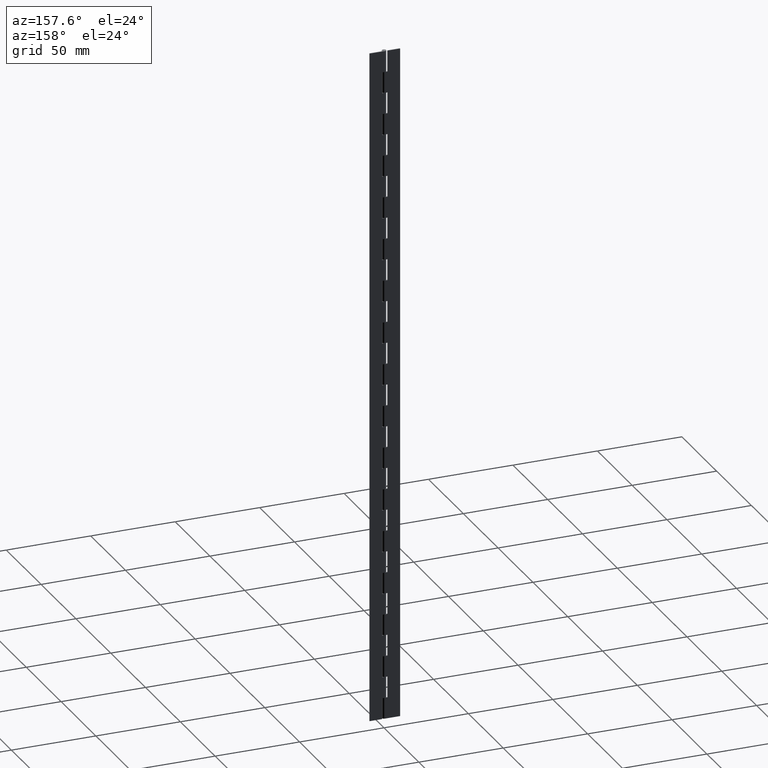
[diagram: clean part render]
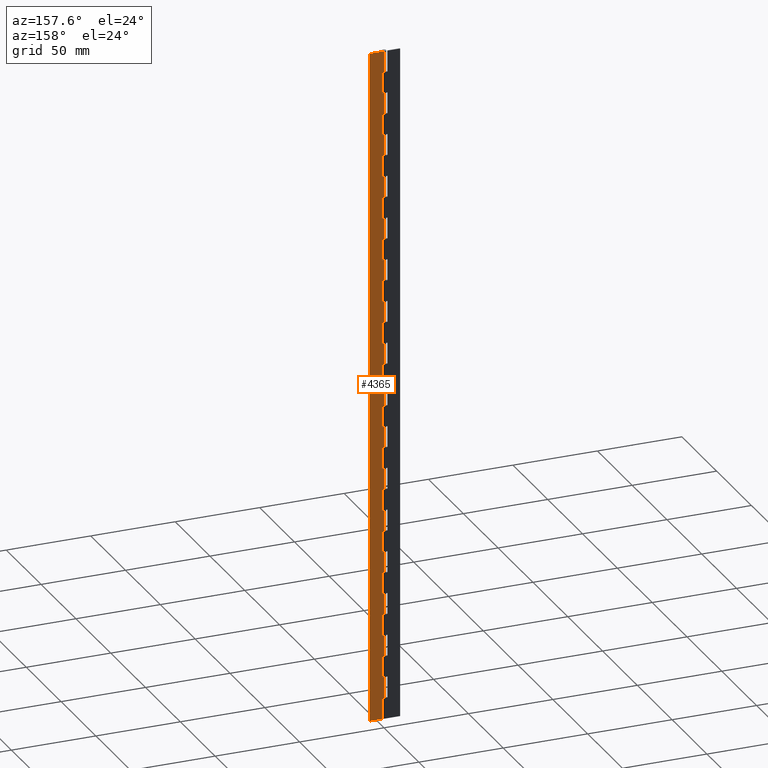
[diagram: same view with one face highlighted and labeled with its STEP entity id]
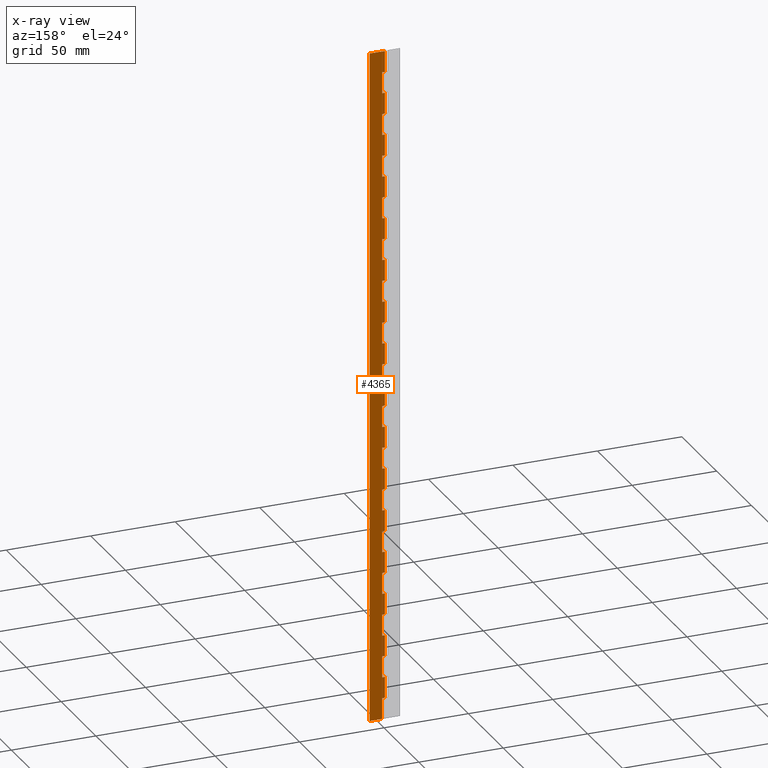
[diagram: x-ray of the same camera — body ghosted, the highlighted face saturated]
A machine part, auxiliary view. The second image highlights one B-rep face of the part: STEP entity #4365.
The next image is the same camera in x-ray: the body ghosted, the highlighted face saturated — about 0% of this face is hidden behind the body in this view.
In plain terms, the highlighted face is a freeform B-spline surface patch.
Its self-contained STEP definition (entity closure, byte-faithful):
#51=CARTESIAN_POINT('',(0.0,1.249999999999972,387.500000000000000));
#52=VERTEX_POINT('',#51);
#72=CARTESIAN_POINT('',(1.599998000000000,1.249999999999972,387.500000000000000));
#73=VERTEX_POINT('',#72);
#74=CARTESIAN_POINT('',(1.599998000000000,1.249999999999972,387.500000000000000));
#75=CARTESIAN_POINT('',(0.0,1.249999999999972,387.500000000000000));
#76=QUASI_UNIFORM_CURVE('',1,(#74,#75),.UNSPECIFIED.,.F.,.U.);
#77=EDGE_CURVE('',#73,#52,#76,.T.);
#136=CARTESIAN_POINT('',(1.599998000000000,1.249999999999972,375.0));
#137=VERTEX_POINT('',#136);
#143=CARTESIAN_POINT('',(0.0,1.249999999999972,375.0));
#144=VERTEX_POINT('',#143);
#145=CARTESIAN_POINT('',(0.0,1.249999999999972,375.0));
#146=CARTESIAN_POINT('',(1.599998000000000,1.249999999999972,375.0));
#147=QUASI_UNIFORM_CURVE('',1,(#145,#146),.UNSPECIFIED.,.F.,.U.);
#148=EDGE_CURVE('',#144,#137,#147,.T.);
#211=CARTESIAN_POINT('',(1.599998000000000,1.249999999999972,375.0));
#212=CARTESIAN_POINT('',(1.599998000000000,1.249999999999972,387.500000000000000));
#213=QUASI_UNIFORM_CURVE('',1,(#211,#212),.UNSPECIFIED.,.F.,.U.);
#214=EDGE_CURVE('',#137,#73,#213,.T.);
#227=CARTESIAN_POINT('',(0.0,1.249999999999972,362.500000000000000));
#228=VERTEX_POINT('',#227);
#248=CARTESIAN_POINT('',(1.599998000000000,1.249999999999972,362.500000000000000));
#249=VERTEX_POINT('',#248);
#250=CARTESIAN_POINT('',(1.599998000000000,1.249999999999972,362.500000000000000));
#251=CARTESIAN_POINT('',(0.0,1.249999999999972,362.500000000000000));
#252=QUASI_UNIFORM_CURVE('',1,(#250,#251),.UNSPECIFIED.,.F.,.U.);
#253=EDGE_CURVE('',#249,#228,#252,.T.);
#312=CARTESIAN_POINT('',(1.599998000000000,1.249999999999972,350.0));
#313=VERTEX_POINT('',#312);
#319=CARTESIAN_POINT('',(0.0,1.249999999999972,350.0));
#320=VERTEX_POINT('',#319);
#321=CARTESIAN_POINT('',(0.0,1.249999999999972,350.0));
#322=CARTESIAN_POINT('',(1.599998000000000,1.249999999999972,350.0));
#323=QUASI_UNIFORM_CURVE('',1,(#321,#322),.UNSPECIFIED.,.F.,.U.);
#324=EDGE_CURVE('',#320,#313,#323,.T.);
#387=CARTESIAN_POINT('',(1.599998000000000,1.249999999999972,350.0));
#388=CARTESIAN_POINT('',(1.599998000000000,1.249999999999972,362.500000000000000));
#389=QUASI_UNIFORM_CURVE('',1,(#387,#388),.UNSPECIFIED.,.F.,.U.);
#390=EDGE_CURVE('',#313,#249,#389,.T.);
#403=CARTESIAN_POINT('',(0.0,1.249999999999972,337.500000000000000));
#404=VERTEX_POINT('',#403);
#424=CARTESIAN_POINT('',(1.599998000000000,1.249999999999972,337.500000000000000));
#425=VERTEX_POINT('',#424);
#426=CARTESIAN_POINT('',(1.599998000000000,1.249999999999972,337.500000000000000));
#427=CARTESIAN_POINT('',(0.0,1.249999999999972,337.500000000000000));
#428=QUASI_UNIFORM_CURVE('',1,(#426,#427),.UNSPECIFIED.,.F.,.U.);
#429=EDGE_CURVE('',#425,#404,#428,.T.);
#488=CARTESIAN_POINT('',(1.599998000000000,1.249999999999972,325.0));
#489=VERTEX_POINT('',#488);
#495=CARTESIAN_POINT('',(0.0,1.249999999999972,325.0));
#496=VERTEX_POINT('',#495);
#497=CARTESIAN_POINT('',(0.0,1.249999999999972,325.0));
#498=CARTESIAN_POINT('',(1.599998000000000,1.249999999999972,325.0));
#499=QUASI_UNIFORM_CURVE('',1,(#497,#498),.UNSPECIFIED.,.F.,.U.);
#500=EDGE_CURVE('',#496,#489,#499,.T.);
#563=CARTESIAN_POINT('',(1.599998000000000,1.249999999999972,325.0));
#564=CARTESIAN_POINT('',(1.599998000000000,1.249999999999972,337.500000000000000));
#565=QUASI_UNIFORM_CURVE('',1,(#563,#564),.UNSPECIFIED.,.F.,.U.);
#566=EDGE_CURVE('',#489,#425,#565,.T.);
#579=CARTESIAN_POINT('',(0.0,1.249999999999972,312.500000000000000));
#580=VERTEX_POINT('',#579);
#600=CARTESIAN_POINT('',(1.599998000000000,1.249999999999972,312.500000000000000));
#601=VERTEX_POINT('',#600);
#602=CARTESIAN_POINT('',(1.599998000000000,1.249999999999972,312.500000000000000));
#603=CARTESIAN_POINT('',(0.0,1.249999999999972,312.500000000000000));
#604=QUASI_UNIFORM_CURVE('',1,(#602,#603),.UNSPECIFIED.,.F.,.U.);
#605=EDGE_CURVE('',#601,#580,#604,.T.);
#664=CARTESIAN_POINT('',(1.599998000000000,1.249999999999972,300.0));
#665=VERTEX_POINT('',#664);
#671=CARTESIAN_POINT('',(0.0,1.249999999999972,300.0));
#672=VERTEX_POINT('',#671);
#673=CARTESIAN_POINT('',(0.0,1.249999999999972,300.0));
#674=CARTESIAN_POINT('',(1.599998000000000,1.249999999999972,300.0));
#675=QUASI_UNIFORM_CURVE('',1,(#673,#674),.UNSPECIFIED.,.F.,.U.);
#676=EDGE_CURVE('',#672,#665,#675,.T.);
#739=CARTESIAN_POINT('',(1.599998000000000,1.249999999999972,300.0));
#740=CARTESIAN_POINT('',(1.599998000000000,1.249999999999972,312.500000000000000));
#741=QUASI_UNIFORM_CURVE('',1,(#739,#740),.UNSPECIFIED.,.F.,.U.);
#742=EDGE_CURVE('',#665,#601,#741,.T.);
#755=CARTESIAN_POINT('',(0.0,1.249999999999972,287.500000000000000));
#756=VERTEX_POINT('',#755);
#776=CARTESIAN_POINT('',(1.599998000000000,1.249999999999972,287.500000000000000));
#777=VERTEX_POINT('',#776);
#778=CARTESIAN_POINT('',(1.599998000000000,1.249999999999972,287.500000000000000));
#779=CARTESIAN_POINT('',(0.0,1.249999999999972,287.500000000000000));
#780=QUASI_UNIFORM_CURVE('',1,(#778,#779),.UNSPECIFIED.,.F.,.U.);
#781=EDGE_CURVE('',#777,#756,#780,.T.);
#840=CARTESIAN_POINT('',(1.599998000000000,1.249999999999972,275.0));
#841=VERTEX_POINT('',#840);
#847=CARTESIAN_POINT('',(0.0,1.249999999999972,275.0));
#848=VERTEX_POINT('',#847);
#849=CARTESIAN_POINT('',(0.0,1.249999999999972,275.0));
#850=CARTESIAN_POINT('',(1.599998000000000,1.249999999999972,275.0));
#851=QUASI_UNIFORM_CURVE('',1,(#849,#850),.UNSPECIFIED.,.F.,.U.);
#852=EDGE_CURVE('',#848,#841,#851,.T.);
#915=CARTESIAN_POINT('',(1.599998000000000,1.249999999999972,275.0));
#916=CARTESIAN_POINT('',(1.599998000000000,1.249999999999972,287.500000000000000));
#917=QUASI_UNIFORM_CURVE('',1,(#915,#916),.UNSPECIFIED.,.F.,.U.);
#918=EDGE_CURVE('',#841,#777,#917,.T.);
#931=CARTESIAN_POINT('',(0.0,1.249999999999972,262.500000000000000));
#932=VERTEX_POINT('',#931);
#952=CARTESIAN_POINT('',(1.599998000000000,1.249999999999972,262.500000000000000));
#953=VERTEX_POINT('',#952);
#954=CARTESIAN_POINT('',(1.599998000000000,1.249999999999972,262.500000000000000));
#955=CARTESIAN_POINT('',(0.0,1.249999999999972,262.500000000000000));
#956=QUASI_UNIFORM_CURVE('',1,(#954,#955),.UNSPECIFIED.,.F.,.U.);
#957=EDGE_CURVE('',#953,#932,#956,.T.);
#1016=CARTESIAN_POINT('',(1.599998000000000,1.249999999999972,250.0));
#1017=VERTEX_POINT('',#1016);
#1023=CARTESIAN_POINT('',(0.0,1.249999999999972,250.0));
#1024=VERTEX_POINT('',#1023);
#1025=CARTESIAN_POINT('',(0.0,1.249999999999972,250.0));
#1026=CARTESIAN_POINT('',(1.599998000000000,1.249999999999972,250.0));
#1027=QUASI_UNIFORM_CURVE('',1,(#1025,#1026),.UNSPECIFIED.,.F.,.U.);
#1028=EDGE_CURVE('',#1024,#1017,#1027,.T.);
#1091=CARTESIAN_POINT('',(1.599998000000000,1.249999999999972,250.0));
#1092=CARTESIAN_POINT('',(1.599998000000000,1.249999999999972,262.500000000000000));
#1093=QUASI_UNIFORM_CURVE('',1,(#1091,#1092),.UNSPECIFIED.,.F.,.U.);
#1094=EDGE_CURVE('',#1017,#953,#1093,.T.);
#1107=CARTESIAN_POINT('',(0.0,1.249999999999972,237.500000000000000));
#1108=VERTEX_POINT('',#1107);
#1128=CARTESIAN_POINT('',(1.599998000000000,1.249999999999972,237.500000000000000));
#1129=VERTEX_POINT('',#1128);
#1130=CARTESIAN_POINT('',(1.599998000000000,1.249999999999972,237.500000000000000));
#1131=CARTESIAN_POINT('',(0.0,1.249999999999972,237.500000000000000));
#1132=QUASI_UNIFORM_CURVE('',1,(#1130,#1131),.UNSPECIFIED.,.F.,.U.);
#1133=EDGE_CURVE('',#1129,#1108,#1132,.T.);
#1192=CARTESIAN_POINT('',(1.599998000000000,1.249999999999972,225.0));
#1193=VERTEX_POINT('',#1192);
#1199=CARTESIAN_POINT('',(0.0,1.249999999999972,225.0));
#1200=VERTEX_POINT('',#1199);
#1201=CARTESIAN_POINT('',(0.0,1.249999999999972,225.0));
#1202=CARTESIAN_POINT('',(1.599998000000000,1.249999999999972,225.0));
#1203=QUASI_UNIFORM_CURVE('',1,(#1201,#1202),.UNSPECIFIED.,.F.,.U.);
#1204=EDGE_CURVE('',#1200,#1193,#1203,.T.);
#1267=CARTESIAN_POINT('',(1.599998000000000,1.249999999999972,225.0));
#1268=CARTESIAN_POINT('',(1.599998000000000,1.249999999999972,237.500000000000000));
#1269=QUASI_UNIFORM_CURVE('',1,(#1267,#1268),.UNSPECIFIED.,.F.,.U.);
#1270=EDGE_CURVE('',#1193,#1129,#1269,.T.);
#1283=CARTESIAN_POINT('',(0.0,1.249999999999972,212.500000000000000));
#1284=VERTEX_POINT('',#1283);
#1304=CARTESIAN_POINT('',(1.599998000000000,1.249999999999972,212.500000000000000));
#1305=VERTEX_POINT('',#1304);
#1306=CARTESIAN_POINT('',(1.599998000000000,1.249999999999972,212.500000000000000));
#1307=CARTESIAN_POINT('',(0.0,1.249999999999972,212.500000000000000));
#1308=QUASI_UNIFORM_CURVE('',1,(#1306,#1307),.UNSPECIFIED.,.F.,.U.);
#1309=EDGE_CURVE('',#1305,#1284,#1308,.T.);
#1368=CARTESIAN_POINT('',(1.599998000000000,1.249999999999972,200.0));
#1369=VERTEX_POINT('',#1368);
#1375=CARTESIAN_POINT('',(0.0,1.249999999999972,200.0));
#1376=VERTEX_POINT('',#1375);
#1377=CARTESIAN_POINT('',(0.0,1.249999999999972,200.0));
#1378=CARTESIAN_POINT('',(1.599998000000000,1.249999999999972,200.0));
#1379=QUASI_UNIFORM_CURVE('',1,(#1377,#1378),.UNSPECIFIED.,.F.,.U.);
#1380=EDGE_CURVE('',#1376,#1369,#1379,.T.);
#1443=CARTESIAN_POINT('',(1.599998000000000,1.249999999999972,200.0));
#1444=CARTESIAN_POINT('',(1.599998000000000,1.249999999999972,212.500000000000000));
#1445=QUASI_UNIFORM_CURVE('',1,(#1443,#1444),.UNSPECIFIED.,.F.,.U.);
#1446=EDGE_CURVE('',#1369,#1305,#1445,.T.);
#1459=CARTESIAN_POINT('',(0.0,1.249999999999972,187.500000000000000));
#1460=VERTEX_POINT('',#1459);
#1480=CARTESIAN_POINT('',(1.599998000000000,1.249999999999972,187.500000000000000));
#1481=VERTEX_POINT('',#1480);
#1482=CARTESIAN_POINT('',(1.599998000000000,1.249999999999972,187.500000000000000));
#1483=CARTESIAN_POINT('',(0.0,1.249999999999972,187.500000000000000));
#1484=QUASI_UNIFORM_CURVE('',1,(#1482,#1483),.UNSPECIFIED.,.F.,.U.);
#1485=EDGE_CURVE('',#1481,#1460,#1484,.T.);
#1544=CARTESIAN_POINT('',(1.599998000000000,1.249999999999972,175.0));
#1545=VERTEX_POINT('',#1544);
#1551=CARTESIAN_POINT('',(0.0,1.249999999999972,175.0));
#1552=VERTEX_POINT('',#1551);
#1553=CARTESIAN_POINT('',(0.0,1.249999999999972,175.0));
#1554=CARTESIAN_POINT('',(1.599998000000000,1.249999999999972,175.0));
#1555=QUASI_UNIFORM_CURVE('',1,(#1553,#1554),.UNSPECIFIED.,.F.,.U.);
#1556=EDGE_CURVE('',#1552,#1545,#1555,.T.);
#1619=CARTESIAN_POINT('',(1.599998000000000,1.249999999999972,175.0));
#1620=CARTESIAN_POINT('',(1.599998000000000,1.249999999999972,187.500000000000000));
#1621=QUASI_UNIFORM_CURVE('',1,(#1619,#1620),.UNSPECIFIED.,.F.,.U.);
#1622=EDGE_CURVE('',#1545,#1481,#1621,.T.);
#1635=CARTESIAN_POINT('',(0.0,1.249999999999972,162.500000000000000));
#1636=VERTEX_POINT('',#1635);
#1656=CARTESIAN_POINT('',(1.599998000000000,1.249999999999972,162.500000000000000));
#1657=VERTEX_POINT('',#1656);
#1658=CARTESIAN_POINT('',(1.599998000000000,1.249999999999972,162.500000000000000));
#1659=CARTESIAN_POINT('',(0.0,1.249999999999972,162.500000000000000));
#1660=QUASI_UNIFORM_CURVE('',1,(#1658,#1659),.UNSPECIFIED.,.F.,.U.);
#1661=EDGE_CURVE('',#1657,#1636,#1660,.T.);
#1720=CARTESIAN_POINT('',(1.599998000000000,1.249999999999972,150.0));
#1721=VERTEX_POINT('',#1720);
#1727=CARTESIAN_POINT('',(0.0,1.249999999999972,150.0));
#1728=VERTEX_POINT('',#1727);
#1729=CARTESIAN_POINT('',(0.0,1.249999999999972,150.0));
#1730=CARTESIAN_POINT('',(1.599998000000000,1.249999999999972,150.0));
#1731=QUASI_UNIFORM_CURVE('',1,(#1729,#1730),.UNSPECIFIED.,.F.,.U.);
#1732=EDGE_CURVE('',#1728,#1721,#1731,.T.);
#1795=CARTESIAN_POINT('',(1.599998000000000,1.249999999999972,150.0));
#1796=CARTESIAN_POINT('',(1.599998000000000,1.249999999999972,162.500000000000000));
#1797=QUASI_UNIFORM_CURVE('',1,(#1795,#1796),.UNSPECIFIED.,.F.,.U.);
#1798=EDGE_CURVE('',#1721,#1657,#1797,.T.);
#1811=CARTESIAN_POINT('',(0.0,1.249999999999972,137.500000000000000));
#1812=VERTEX_POINT('',#1811);
#1832=CARTESIAN_POINT('',(1.599998000000000,1.249999999999972,137.500000000000000));
#1833=VERTEX_POINT('',#1832);
#1834=CARTESIAN_POINT('',(1.599998000000000,1.249999999999972,137.500000000000000));
#1835=CARTESIAN_POINT('',(0.0,1.249999999999972,137.500000000000000));
#1836=QUASI_UNIFORM_CURVE('',1,(#1834,#1835),.UNSPECIFIED.,.F.,.U.);
#1837=EDGE_CURVE('',#1833,#1812,#1836,.T.);
#1896=CARTESIAN_POINT('',(1.599998000000000,1.249999999999972,125.0));
#1897=VERTEX_POINT('',#1896);
#1903=CARTESIAN_POINT('',(0.0,1.249999999999972,125.0));
#1904=VERTEX_POINT('',#1903);
#1905=CARTESIAN_POINT('',(0.0,1.249999999999972,125.0));
#1906=CARTESIAN_POINT('',(1.599998000000000,1.249999999999972,125.0));
#1907=QUASI_UNIFORM_CURVE('',1,(#1905,#1906),.UNSPECIFIED.,.F.,.U.);
#1908=EDGE_CURVE('',#1904,#1897,#1907,.T.);
#1971=CARTESIAN_POINT('',(1.599998000000000,1.249999999999972,125.0));
#1972=CARTESIAN_POINT('',(1.599998000000000,1.249999999999972,137.500000000000000));
#1973=QUASI_UNIFORM_CURVE('',1,(#1971,#1972),.UNSPECIFIED.,.F.,.U.);
#1974=EDGE_CURVE('',#1897,#1833,#1973,.T.);
#1987=CARTESIAN_POINT('',(0.0,1.249999999999972,112.500000000000000));
#1988=VERTEX_POINT('',#1987);
#2008=CARTESIAN_POINT('',(1.599998000000000,1.249999999999972,112.500000000000000));
#2009=VERTEX_POINT('',#2008);
#2010=CARTESIAN_POINT('',(1.599998000000000,1.249999999999972,112.500000000000000));
#2011=CARTESIAN_POINT('',(0.0,1.249999999999972,112.500000000000000));
#2012=QUASI_UNIFORM_CURVE('',1,(#2010,#2011),.UNSPECIFIED.,.F.,.U.);
#2013=EDGE_CURVE('',#2009,#1988,#2012,.T.);
#2072=CARTESIAN_POINT('',(1.599998000000000,1.249999999999972,100.0));
#2073=VERTEX_POINT('',#2072);
#2079=CARTESIAN_POINT('',(0.0,1.249999999999972,100.0));
#2080=VERTEX_POINT('',#2079);
#2081=CARTESIAN_POINT('',(0.0,1.249999999999972,100.0));
#2082=CARTESIAN_POINT('',(1.599998000000000,1.249999999999972,100.0));
#2083=QUASI_UNIFORM_CURVE('',1,(#2081,#2082),.UNSPECIFIED.,.F.,.U.);
#2084=EDGE_CURVE('',#2080,#2073,#2083,.T.);
#2147=CARTESIAN_POINT('',(1.599998000000000,1.249999999999972,100.0));
#2148=CARTESIAN_POINT('',(1.599998000000000,1.249999999999972,112.500000000000000));
#2149=QUASI_UNIFORM_CURVE('',1,(#2147,#2148),.UNSPECIFIED.,.F.,.U.);
#2150=EDGE_CURVE('',#2073,#2009,#2149,.T.);
#2163=CARTESIAN_POINT('',(0.0,1.249999999999972,87.500000000000000));
#2164=VERTEX_POINT('',#2163);
#2184=CARTESIAN_POINT('',(1.599998000000000,1.249999999999972,87.500000000000000));
#2185=VERTEX_POINT('',#2184);
#2186=CARTESIAN_POINT('',(1.599998000000000,1.249999999999972,87.500000000000000));
#2187=CARTESIAN_POINT('',(0.0,1.249999999999972,87.500000000000000));
#2188=QUASI_UNIFORM_CURVE('',1,(#2186,#2187),.UNSPECIFIED.,.F.,.U.);
#2189=EDGE_CURVE('',#2185,#2164,#2188,.T.);
#2248=CARTESIAN_POINT('',(1.599998000000000,1.249999999999972,75.0));
#2249=VERTEX_POINT('',#2248);
#2255=CARTESIAN_POINT('',(0.0,1.249999999999972,75.0));
#2256=VERTEX_POINT('',#2255);
#2257=CARTESIAN_POINT('',(0.0,1.249999999999972,75.0));
#2258=CARTESIAN_POINT('',(1.599998000000000,1.249999999999972,75.0));
#2259=QUASI_UNIFORM_CURVE('',1,(#2257,#2258),.UNSPECIFIED.,.F.,.U.);
#2260=EDGE_CURVE('',#2256,#2249,#2259,.T.);
#2323=CARTESIAN_POINT('',(1.599998000000000,1.249999999999972,75.0));
#2324=CARTESIAN_POINT('',(1.599998000000000,1.249999999999972,87.500000000000000));
#2325=QUASI_UNIFORM_CURVE('',1,(#2323,#2324),.UNSPECIFIED.,.F.,.U.);
#2326=EDGE_CURVE('',#2249,#2185,#2325,.T.);
#2339=CARTESIAN_POINT('',(0.0,1.249999999999972,62.500000000000000));
#2340=VERTEX_POINT('',#2339);
#2360=CARTESIAN_POINT('',(1.599998000000000,1.249999999999972,62.500000000000000));
#2361=VERTEX_POINT('',#2360);
#2362=CARTESIAN_POINT('',(1.599998000000000,1.249999999999972,62.500000000000000));
#2363=CARTESIAN_POINT('',(0.0,1.249999999999972,62.500000000000000));
#2364=QUASI_UNIFORM_CURVE('',1,(#2362,#2363),.UNSPECIFIED.,.F.,.U.);
#2365=EDGE_CURVE('',#2361,#2340,#2364,.T.);
#2424=CARTESIAN_POINT('',(1.599998000000000,1.249999999999972,50.0));
#2425=VERTEX_POINT('',#2424);
#2431=CARTESIAN_POINT('',(0.0,1.249999999999972,50.0));
#2432=VERTEX_POINT('',#2431);
#2433=CARTESIAN_POINT('',(0.0,1.249999999999972,50.0));
#2434=CARTESIAN_POINT('',(1.599998000000000,1.249999999999972,50.0));
#2435=QUASI_UNIFORM_CURVE('',1,(#2433,#2434),.UNSPECIFIED.,.F.,.U.);
#2436=EDGE_CURVE('',#2432,#2425,#2435,.T.);
#2499=CARTESIAN_POINT('',(1.599998000000000,1.249999999999972,50.0));
#2500=CARTESIAN_POINT('',(1.599998000000000,1.249999999999972,62.500000000000000));
#2501=QUASI_UNIFORM_CURVE('',1,(#2499,#2500),.UNSPECIFIED.,.F.,.U.);
#2502=EDGE_CURVE('',#2425,#2361,#2501,.T.);
#2515=CARTESIAN_POINT('',(0.0,1.249999999999972,37.500000000000000));
#2516=VERTEX_POINT('',#2515);
#2536=CARTESIAN_POINT('',(1.599998000000000,1.249999999999972,37.500000000000000));
#2537=VERTEX_POINT('',#2536);
#2538=CARTESIAN_POINT('',(1.599998000000000,1.249999999999972,37.500000000000000));
#2539=CARTESIAN_POINT('',(0.0,1.249999999999972,37.500000000000000));
#2540=QUASI_UNIFORM_CURVE('',1,(#2538,#2539),.UNSPECIFIED.,.F.,.U.);
#2541=EDGE_CURVE('',#2537,#2516,#2540,.T.);
#2600=CARTESIAN_POINT('',(1.599998000000000,1.249999999999972,25.0));
#2601=VERTEX_POINT('',#2600);
#2607=CARTESIAN_POINT('',(0.0,1.249999999999972,25.0));
#2608=VERTEX_POINT('',#2607);
#2609=CARTESIAN_POINT('',(0.0,1.249999999999972,25.0));
#2610=CARTESIAN_POINT('',(1.599998000000000,1.249999999999972,25.0));
#2611=QUASI_UNIFORM_CURVE('',1,(#2609,#2610),.UNSPECIFIED.,.F.,.U.);
#2612=EDGE_CURVE('',#2608,#2601,#2611,.T.);
#2675=CARTESIAN_POINT('',(1.599998000000000,1.249999999999972,25.0));
#2676=CARTESIAN_POINT('',(1.599998000000000,1.249999999999972,37.500000000000000));
#2677=QUASI_UNIFORM_CURVE('',1,(#2675,#2676),.UNSPECIFIED.,.F.,.U.);
#2678=EDGE_CURVE('',#2601,#2537,#2677,.T.);
#2698=CARTESIAN_POINT('',(1.599998000000000,1.249999999999972,12.500000000000000));
#2699=VERTEX_POINT('',#2698);
#2705=CARTESIAN_POINT('',(1.599998000000000,1.250000000000000,0.0));
#2706=VERTEX_POINT('',#2705);
#2707=CARTESIAN_POINT('',(1.599998000000000,1.250000000000000,0.0));
#2708=CARTESIAN_POINT('',(1.599998000000000,1.249999999999972,12.500000000000000));
#2709=QUASI_UNIFORM_CURVE('',1,(#2707,#2708),.UNSPECIFIED.,.F.,.U.);
#2710=EDGE_CURVE('',#2706,#2699,#2709,.T.);
#2727=CARTESIAN_POINT('',(0.0,1.249999999999972,12.500000000000000));
#2728=VERTEX_POINT('',#2727);
#2748=CARTESIAN_POINT('',(1.599998000000000,1.249999999999972,12.500000000000000));
#2749=CARTESIAN_POINT('',(0.0,1.249999999999972,12.500000000000000));
#2750=QUASI_UNIFORM_CURVE('',1,(#2748,#2749),.UNSPECIFIED.,.F.,.U.);
#2751=EDGE_CURVE('',#2699,#2728,#2750,.T.);
#2804=CARTESIAN_POINT('',(9.0,1.250000000000000,400.0));
#2805=VERTEX_POINT('',#2804);
#2811=CARTESIAN_POINT('',(0.0,1.250000000000000,400.0));
#2812=VERTEX_POINT('',#2811);
#2813=CARTESIAN_POINT('',(9.0,1.250000000000000,400.0));
#2814=CARTESIAN_POINT('',(0.0,1.250000000000000,400.0));
#2815=QUASI_UNIFORM_CURVE('',1,(#2813,#2814),.UNSPECIFIED.,.F.,.U.);
#2816=EDGE_CURVE('',#2805,#2812,#2815,.T.);
#2875=CARTESIAN_POINT('',(9.0,1.250000000000000,0.0));
#2876=VERTEX_POINT('',#2875);
#2882=CARTESIAN_POINT('',(9.0,1.250000000000000,400.0));
#2883=CARTESIAN_POINT('',(9.0,1.250000000000000,0.0));
#2884=QUASI_UNIFORM_CURVE('',1,(#2882,#2883),.UNSPECIFIED.,.F.,.U.);
#2885=EDGE_CURVE('',#2805,#2876,#2884,.T.);
#2902=CARTESIAN_POINT('',(9.0,1.250000000000000,0.0));
#2903=CARTESIAN_POINT('',(1.599998000000000,1.250000000000000,0.0));
#2904=QUASI_UNIFORM_CURVE('',1,(#2902,#2903),.UNSPECIFIED.,.F.,.U.);
#2905=EDGE_CURVE('',#2876,#2706,#2904,.T.);
#2992=CARTESIAN_POINT('',(0.0,1.249999999999972,25.0));
#2993=CARTESIAN_POINT('',(0.0,1.249999999999972,12.500000000000000));
#2994=QUASI_UNIFORM_CURVE('',1,(#2992,#2993),.UNSPECIFIED.,.F.,.U.);
#2995=EDGE_CURVE('',#2608,#2728,#2994,.T.);
#3078=CARTESIAN_POINT('',(0.0,1.249999999999972,50.0));
#3079=CARTESIAN_POINT('',(0.0,1.249999999999972,37.500000000000000));
#3080=QUASI_UNIFORM_CURVE('',1,(#3078,#3079),.UNSPECIFIED.,.F.,.U.);
#3081=EDGE_CURVE('',#2432,#2516,#3080,.T.);
#3164=CARTESIAN_POINT('',(0.0,1.249999999999972,75.0));
#3165=CARTESIAN_POINT('',(0.0,1.249999999999972,62.500000000000000));
#3166=QUASI_UNIFORM_CURVE('',1,(#3164,#3165),.UNSPECIFIED.,.F.,.U.);
#3167=EDGE_CURVE('',#2256,#2340,#3166,.T.);
#3250=CARTESIAN_POINT('',(0.0,1.249999999999972,100.0));
#3251=CARTESIAN_POINT('',(0.0,1.249999999999972,87.500000000000000));
#3252=QUASI_UNIFORM_CURVE('',1,(#3250,#3251),.UNSPECIFIED.,.F.,.U.);
#3253=EDGE_CURVE('',#2080,#2164,#3252,.T.);
#3336=CARTESIAN_POINT('',(0.0,1.249999999999972,125.0));
#3337=CARTESIAN_POINT('',(0.0,1.249999999999972,112.500000000000000));
#3338=QUASI_UNIFORM_CURVE('',1,(#3336,#3337),.UNSPECIFIED.,.F.,.U.);
#3339=EDGE_CURVE('',#1904,#1988,#3338,.T.);
#3422=CARTESIAN_POINT('',(0.0,1.249999999999972,150.0));
#3423=CARTESIAN_POINT('',(0.0,1.249999999999972,137.500000000000000));
#3424=QUASI_UNIFORM_CURVE('',1,(#3422,#3423),.UNSPECIFIED.,.F.,.U.);
#3425=EDGE_CURVE('',#1728,#1812,#3424,.T.);
#3508=CARTESIAN_POINT('',(0.0,1.249999999999972,175.0));
#3509=CARTESIAN_POINT('',(0.0,1.249999999999972,162.500000000000000));
#3510=QUASI_UNIFORM_CURVE('',1,(#3508,#3509),.UNSPECIFIED.,.F.,.U.);
#3511=EDGE_CURVE('',#1552,#1636,#3510,.T.);
#3594=CARTESIAN_POINT('',(0.0,1.249999999999972,200.0));
#3595=CARTESIAN_POINT('',(0.0,1.249999999999972,187.500000000000000));
#3596=QUASI_UNIFORM_CURVE('',1,(#3594,#3595),.UNSPECIFIED.,.F.,.U.);
#3597=EDGE_CURVE('',#1376,#1460,#3596,.T.);
#3680=CARTESIAN_POINT('',(0.0,1.249999999999972,225.0));
#3681=CARTESIAN_POINT('',(0.0,1.249999999999972,212.500000000000000));
#3682=QUASI_UNIFORM_CURVE('',1,(#3680,#3681),.UNSPECIFIED.,.F.,.U.);
#3683=EDGE_CURVE('',#1200,#1284,#3682,.T.);
#3766=CARTESIAN_POINT('',(0.0,1.249999999999972,250.0));
#3767=CARTESIAN_POINT('',(0.0,1.249999999999972,237.500000000000000));
#3768=QUASI_UNIFORM_CURVE('',1,(#3766,#3767),.UNSPECIFIED.,.F.,.U.);
#3769=EDGE_CURVE('',#1024,#1108,#3768,.T.);
#3852=CARTESIAN_POINT('',(0.0,1.249999999999972,275.0));
#3853=CARTESIAN_POINT('',(0.0,1.249999999999972,262.500000000000000));
#3854=QUASI_UNIFORM_CURVE('',1,(#3852,#3853),.UNSPECIFIED.,.F.,.U.);
#3855=EDGE_CURVE('',#848,#932,#3854,.T.);
#3938=CARTESIAN_POINT('',(0.0,1.249999999999972,300.0));
#3939=CARTESIAN_POINT('',(0.0,1.249999999999972,287.500000000000000));
#3940=QUASI_UNIFORM_CURVE('',1,(#3938,#3939),.UNSPECIFIED.,.F.,.U.);
#3941=EDGE_CURVE('',#672,#756,#3940,.T.);
#4024=CARTESIAN_POINT('',(0.0,1.249999999999972,325.0));
#4025=CARTESIAN_POINT('',(0.0,1.249999999999972,312.500000000000000));
#4026=QUASI_UNIFORM_CURVE('',1,(#4024,#4025),.UNSPECIFIED.,.F.,.U.);
#4027=EDGE_CURVE('',#496,#580,#4026,.T.);
#4110=CARTESIAN_POINT('',(0.0,1.249999999999972,350.0));
#4111=CARTESIAN_POINT('',(0.0,1.249999999999972,337.500000000000000));
#4112=QUASI_UNIFORM_CURVE('',1,(#4110,#4111),.UNSPECIFIED.,.F.,.U.);
#4113=EDGE_CURVE('',#320,#404,#4112,.T.);
#4251=CARTESIAN_POINT('',(0.0,1.250000000000000,400.0));
#4252=CARTESIAN_POINT('',(0.0,1.249999999999972,387.500000000000000));
#4253=QUASI_UNIFORM_CURVE('',1,(#4251,#4252),.UNSPECIFIED.,.F.,.U.);
#4254=EDGE_CURVE('',#2812,#52,#4253,.T.);
#4282=CARTESIAN_POINT('',(0.0,1.249999999999972,375.0));
#4283=CARTESIAN_POINT('',(0.0,1.249999999999972,362.500000000000000));
#4284=QUASI_UNIFORM_CURVE('',1,(#4282,#4283),.UNSPECIFIED.,.F.,.U.);
#4285=EDGE_CURVE('',#144,#228,#4284,.T.);
#4292=CARTESIAN_POINT('',(-0.449549982556253,1.250000000000000,419.979999224722410));
#4293=CARTESIAN_POINT('',(-0.449549982556253,1.250000000000000,-19.980009953558440));
#4294=CARTESIAN_POINT('',(9.449550223955063,1.250000000000000,419.979999224722410));
#4295=CARTESIAN_POINT('',(9.449550223955063,1.250000000000000,-19.980009953558440));
#4296=B_SPLINE_SURFACE_WITH_KNOTS('',1,1,((#4292,#4294),(#4293,#4295)),.UNSPECIFIED.,.F.,.F.,.U.,(2,2),(2,2),(0.0,439.960009178280930),(0.0,9.899100206511315),.UNSPECIFIED.);
#4297=ORIENTED_EDGE('',*,*,#148,.T.);
#4298=ORIENTED_EDGE('',*,*,#214,.T.);
#4299=ORIENTED_EDGE('',*,*,#77,.T.);
#4300=ORIENTED_EDGE('',*,*,#4254,.F.);
#4301=ORIENTED_EDGE('',*,*,#2816,.F.);
#4302=ORIENTED_EDGE('',*,*,#2885,.T.);
#4303=ORIENTED_EDGE('',*,*,#2905,.T.);
#4304=ORIENTED_EDGE('',*,*,#2710,.T.);
#4305=ORIENTED_EDGE('',*,*,#2751,.T.);
#4306=ORIENTED_EDGE('',*,*,#2995,.F.);
#4307=ORIENTED_EDGE('',*,*,#2612,.T.);
#4308=ORIENTED_EDGE('',*,*,#2678,.T.);
#4309=ORIENTED_EDGE('',*,*,#2541,.T.);
#4310=ORIENTED_EDGE('',*,*,#3081,.F.);
#4311=ORIENTED_EDGE('',*,*,#2436,.T.);
#4312=ORIENTED_EDGE('',*,*,#2502,.T.);
#4313=ORIENTED_EDGE('',*,*,#2365,.T.);
#4314=ORIENTED_EDGE('',*,*,#3167,.F.);
#4315=ORIENTED_EDGE('',*,*,#2260,.T.);
#4316=ORIENTED_EDGE('',*,*,#2326,.T.);
#4317=ORIENTED_EDGE('',*,*,#2189,.T.);
#4318=ORIENTED_EDGE('',*,*,#3253,.F.);
#4319=ORIENTED_EDGE('',*,*,#2084,.T.);
#4320=ORIENTED_EDGE('',*,*,#2150,.T.);
#4321=ORIENTED_EDGE('',*,*,#2013,.T.);
#4322=ORIENTED_EDGE('',*,*,#3339,.F.);
#4323=ORIENTED_EDGE('',*,*,#1908,.T.);
#4324=ORIENTED_EDGE('',*,*,#1974,.T.);
#4325=ORIENTED_EDGE('',*,*,#1837,.T.);
#4326=ORIENTED_EDGE('',*,*,#3425,.F.);
#4327=ORIENTED_EDGE('',*,*,#1732,.T.);
#4328=ORIENTED_EDGE('',*,*,#1798,.T.);
#4329=ORIENTED_EDGE('',*,*,#1661,.T.);
#4330=ORIENTED_EDGE('',*,*,#3511,.F.);
#4331=ORIENTED_EDGE('',*,*,#1556,.T.);
#4332=ORIENTED_EDGE('',*,*,#1622,.T.);
#4333=ORIENTED_EDGE('',*,*,#1485,.T.);
#4334=ORIENTED_EDGE('',*,*,#3597,.F.);
#4335=ORIENTED_EDGE('',*,*,#1380,.T.);
#4336=ORIENTED_EDGE('',*,*,#1446,.T.);
#4337=ORIENTED_EDGE('',*,*,#1309,.T.);
#4338=ORIENTED_EDGE('',*,*,#3683,.F.);
#4339=ORIENTED_EDGE('',*,*,#1204,.T.);
#4340=ORIENTED_EDGE('',*,*,#1270,.T.);
#4341=ORIENTED_EDGE('',*,*,#1133,.T.);
#4342=ORIENTED_EDGE('',*,*,#3769,.F.);
#4343=ORIENTED_EDGE('',*,*,#1028,.T.);
#4344=ORIENTED_EDGE('',*,*,#1094,.T.);
#4345=ORIENTED_EDGE('',*,*,#957,.T.);
#4346=ORIENTED_EDGE('',*,*,#3855,.F.);
#4347=ORIENTED_EDGE('',*,*,#852,.T.);
#4348=ORIENTED_EDGE('',*,*,#918,.T.);
#4349=ORIENTED_EDGE('',*,*,#781,.T.);
#4350=ORIENTED_EDGE('',*,*,#3941,.F.);
#4351=ORIENTED_EDGE('',*,*,#676,.T.);
#4352=ORIENTED_EDGE('',*,*,#742,.T.);
#4353=ORIENTED_EDGE('',*,*,#605,.T.);
#4354=ORIENTED_EDGE('',*,*,#4027,.F.);
#4355=ORIENTED_EDGE('',*,*,#500,.T.);
#4356=ORIENTED_EDGE('',*,*,#566,.T.);
#4357=ORIENTED_EDGE('',*,*,#429,.T.);
#4358=ORIENTED_EDGE('',*,*,#4113,.F.);
#4359=ORIENTED_EDGE('',*,*,#324,.T.);
#4360=ORIENTED_EDGE('',*,*,#390,.T.);
#4361=ORIENTED_EDGE('',*,*,#253,.T.);
#4362=ORIENTED_EDGE('',*,*,#4285,.F.);
#4363=EDGE_LOOP('',(#4297,#4298,#4299,#4300,#4301,#4302,#4303,#4304,#4305,#4306,#4307,#4308,#4309,#4310,#4311,#4312,#4313,#4314,#4315,#4316,#4317,#4318,#4319,#4320,#4321,#4322,#4323,#4324,#4325,#4326,#4327,#4328,#4329,#4330,#4331,#4332,#4333,#4334,#4335,#4336,#4337,#4338,#4339,#4340,#4341,#4342,#4343,#4344,#4345,#4346,#4347,#4348,#4349,#4350,#4351,#4352,#4353,#4354,#4355,#4356,#4357,#4358,#4359,#4360,#4361,#4362));
#4364=FACE_OUTER_BOUND('',#4363,.T.);
#4365=ADVANCED_FACE('',(#4364),#4296,.F.);